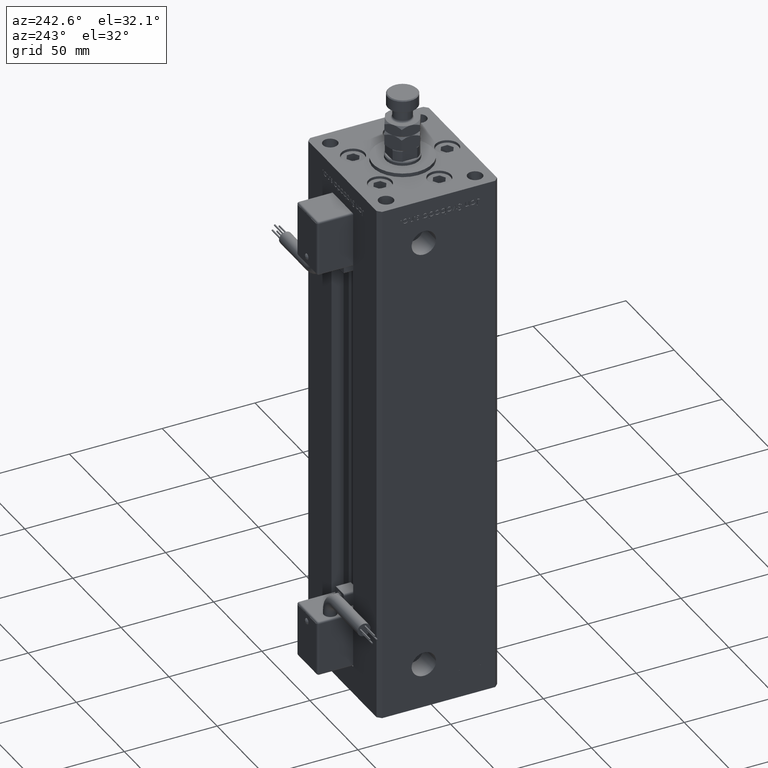
[diagram: clean part render]
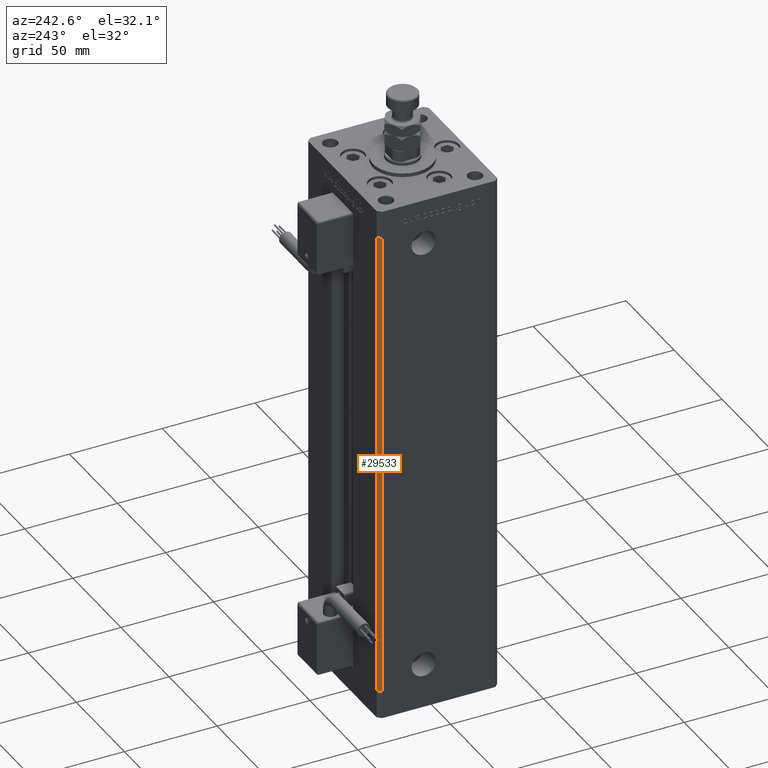
[diagram: same view with one face highlighted and labeled with its STEP entity id]
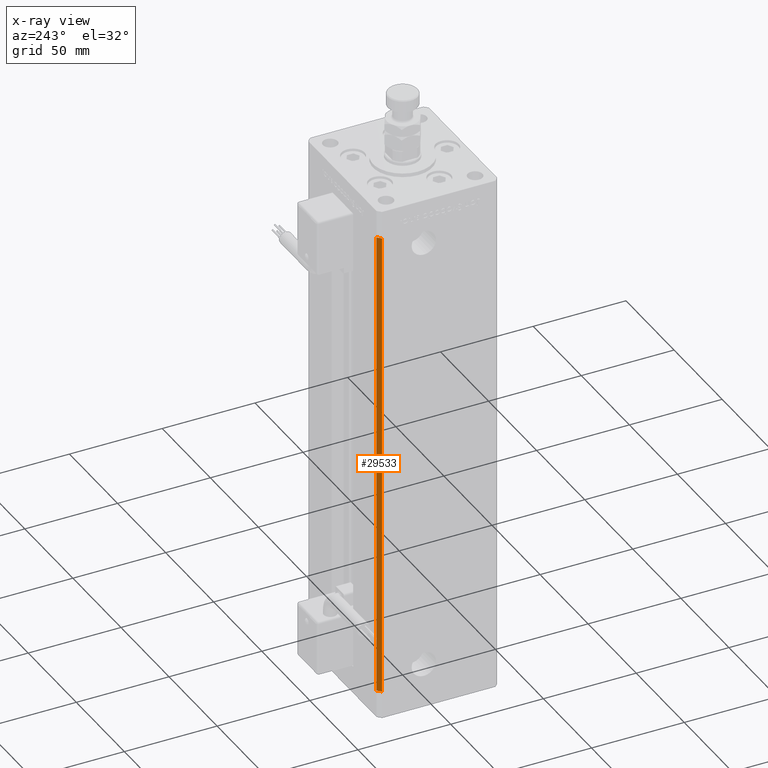
[diagram: x-ray of the same camera — body ghosted, the highlighted face saturated]
A machine part, auxiliary view. The second image highlights one B-rep face of the part: STEP entity #29533.
The next image is the same camera in x-ray: the body ghosted, the highlighted face saturated — about 0% of this face is hidden behind the body in this view.
In plain terms, the highlighted planar face has unit normal (0.7071, -0.7071, 0).
Its self-contained STEP definition (entity closure, byte-faithful):
#2302 = CARTESIAN_POINT ( 'NONE',  ( -35.50000000000000000, 32.49999999999999289, 0.000000000000000000 ) ) ;
#3221 = VECTOR ( 'NONE', #19846, 1000.000000000000114 ) ;
#5614 = DIRECTION ( 'NONE',  ( -0.000000000000000000, -0.000000000000000000, -1.000000000000000000 ) ) ;
#9872 = AXIS2_PLACEMENT_3D ( 'NONE', #9939, #23431, #27483 ) ;
#9939 = CARTESIAN_POINT ( 'NONE',  ( -35.50000000000000000, 32.49999999999999289, 256.0000000000000000 ) ) ;
#9941 = CARTESIAN_POINT ( 'NONE',  ( -37.50000000000000711, 30.50000000000000000, 256.0000000000000000 ) ) ;
#13259 = VECTOR ( 'NONE', #21478, 1000.000000000000114 ) ;
#13273 = VERTEX_POINT ( 'NONE', #16538 ) ;
#13491 = ORIENTED_EDGE ( 'NONE', *, *, #46078, .T. ) ;
#15196 = CARTESIAN_POINT ( 'NONE',  ( -35.50000000000000000, 32.49999999999999289, 0.000000000000000000 ) ) ;
#15955 = CARTESIAN_POINT ( 'NONE',  ( -37.50000000000000711, 30.50000000000000000, 0.000000000000000000 ) ) ;
#16484 = CARTESIAN_POINT ( 'NONE',  ( -37.50000000000000711, 30.50000000000000000, 256.0000000000000000 ) ) ;
#16538 = CARTESIAN_POINT ( 'NONE',  ( -35.50000000000000000, 32.49999999999999289, 256.0000000000000000 ) ) ;
#18850 = FACE_OUTER_BOUND ( 'NONE', #56078, .T. ) ;
#19805 = DIRECTION ( 'NONE',  ( -0.000000000000000000, -0.000000000000000000, -1.000000000000000000 ) ) ;
#19846 = DIRECTION ( 'NONE',  ( -0.7071067811865500152, -0.7071067811865451302, 0.000000000000000000 ) ) ;
#20928 = CARTESIAN_POINT ( 'NONE',  ( -35.50000000000000000, 32.49999999999999289, 256.0000000000000000 ) ) ;
#21478 = DIRECTION ( 'NONE',  ( -0.7071067811865500152, -0.7071067811865451302, 0.000000000000000000 ) ) ;
#23431 = DIRECTION ( 'NONE',  ( 0.7071067811865451302, -0.7071067811865500152, 0.000000000000000000 ) ) ;
#23923 = VERTEX_POINT ( 'NONE', #15196 ) ;
#25207 = VECTOR ( 'NONE', #19805, 1000.000000000000000 ) ;
#27483 = DIRECTION ( 'NONE',  ( 0.7071067811865500152, 0.7071067811865451302, 0.000000000000000000 ) ) ;
#27485 = LINE ( 'NONE', #9941, #54874 ) ;
#29533 = ADVANCED_FACE ( 'NONE', ( #18850 ), #36362, .F. ) ;
#31209 = EDGE_CURVE ( 'NONE', #49657, #32245, #27485, .T. ) ;
#32245 = VERTEX_POINT ( 'NONE', #15955 ) ;
#36362 = PLANE ( 'NONE',  #9872 ) ;
#37867 = CARTESIAN_POINT ( 'NONE',  ( -35.50000000000000000, 32.49999999999999289, 256.0000000000000000 ) ) ;
#38705 = LINE ( 'NONE', #20928, #13259 ) ;
#38961 = ORIENTED_EDGE ( 'NONE', *, *, #39352, .T. ) ;
#39352 = EDGE_CURVE ( 'NONE', #13273, #23923, #49970, .T. ) ;
#39418 = EDGE_CURVE ( 'NONE', #13273, #49657, #38705, .T. ) ;
#42378 = ORIENTED_EDGE ( 'NONE', *, *, #31209, .F. ) ;
#46078 = EDGE_CURVE ( 'NONE', #23923, #32245, #46818, .T. ) ;
#46818 = LINE ( 'NONE', #2302, #3221 ) ;
#49002 = ORIENTED_EDGE ( 'NONE', *, *, #39418, .F. ) ;
#49657 = VERTEX_POINT ( 'NONE', #16484 ) ;
#49970 = LINE ( 'NONE', #37867, #25207 ) ;
#54874 = VECTOR ( 'NONE', #5614, 1000.000000000000000 ) ;
#56078 = EDGE_LOOP ( 'NONE', ( #13491, #42378, #49002, #38961 ) ) ;